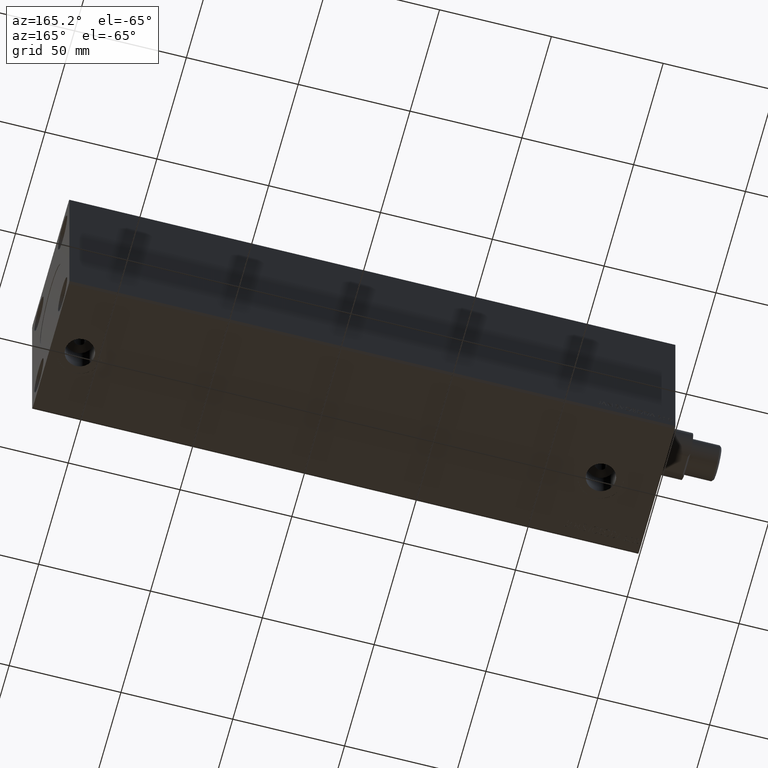
[diagram: clean part render]
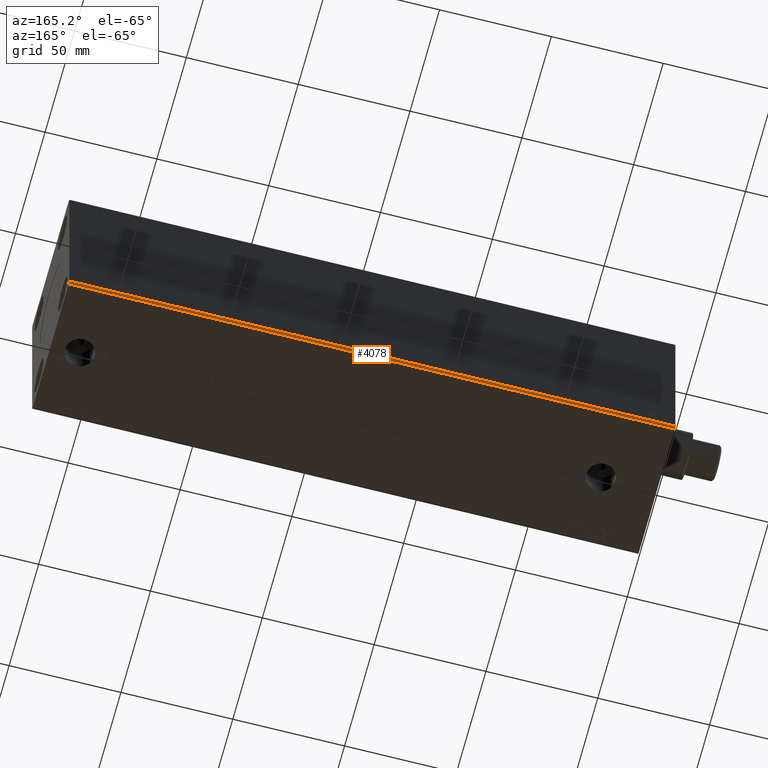
[diagram: same view with one face highlighted and labeled with its STEP entity id]
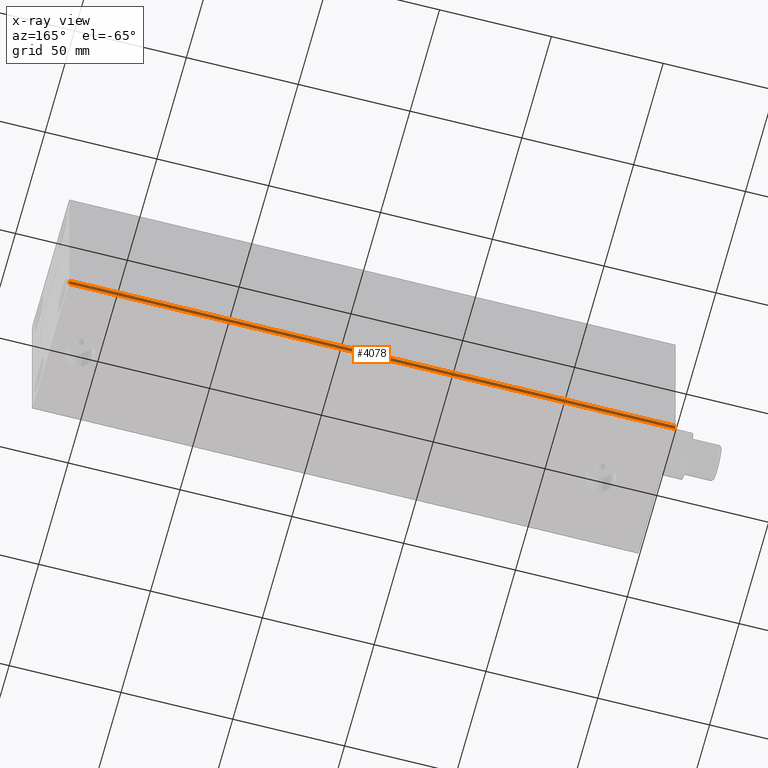
[diagram: x-ray of the same camera — body ghosted, the highlighted face saturated]
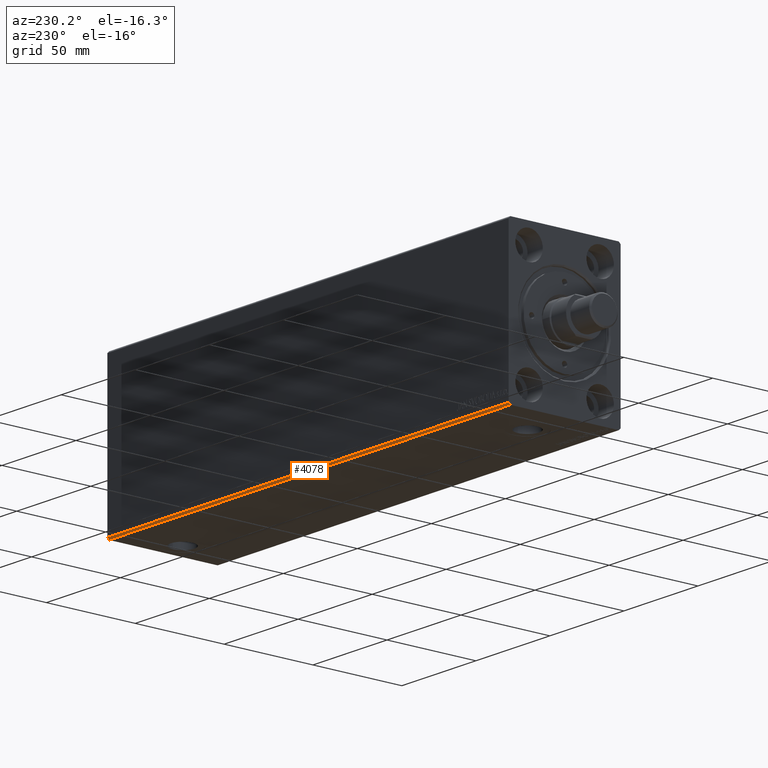
[diagram: same view with one face highlighted and labeled with its STEP entity id]
A machine part, auxiliary view. The second image highlights one B-rep face of the part: STEP entity #4078.
The next image is the same camera in x-ray: the body ghosted, the highlighted face saturated — about 0% of this face is hidden behind the body in this view.
A second angle (auxiliary view) of the same face is appended — the face is thin or edge-on in the first view.
In plain terms, the highlighted planar face has unit normal (0, -0.7071, 0.7071).
Its self-contained STEP definition (entity closure, byte-faithful):
#2047 = CARTESIAN_POINT ( 'NONE',  ( 271.0000000000000000, 30.50000000000001776, -42.50000000000000711 ) ) ;
#4078 = ADVANCED_FACE ( 'NONE', ( #10386 ), #34027, .F. ) ;
#4588 = VECTOR ( 'NONE', #19354, 999.9999999999998863 ) ;
#7129 = VERTEX_POINT ( 'NONE', #42872 ) ;
#7943 = DIRECTION ( 'NONE',  ( -1.000000000000000000, -0.000000000000000000, -0.000000000000000000 ) ) ;
#9083 = VERTEX_POINT ( 'NONE', #20391 ) ;
#10386 = FACE_OUTER_BOUND ( 'NONE', #36626, .T. ) ;
#12931 = CARTESIAN_POINT ( 'NONE',  ( 0.000000000000000000, 30.50000000000001776, -42.50000000000000711 ) ) ;
#13836 = ORIENTED_EDGE ( 'NONE', *, *, #34238, .F. ) ;
#14953 = ORIENTED_EDGE ( 'NONE', *, *, #29551, .T. ) ;
#15919 = VECTOR ( 'NONE', #29049, 999.9999999999998863 ) ;
#16235 = LINE ( 'NONE', #2047, #15919 ) ;
#18584 = AXIS2_PLACEMENT_3D ( 'NONE', #34898, #34241, #27494 ) ;
#18774 = ORIENTED_EDGE ( 'NONE', *, *, #22754, .T. ) ;
#19354 = DIRECTION ( 'NONE',  ( 0.000000000000000000, 0.7071067811865462405, 0.7071067811865489050 ) ) ;
#20019 = LINE ( 'NONE', #40267, #4588 ) ;
#20391 = CARTESIAN_POINT ( 'NONE',  ( 271.0000000000000000, 30.50000000000001776, -42.50000000000000711 ) ) ;
#22274 = ORIENTED_EDGE ( 'NONE', *, *, #23176, .F. ) ;
#22754 = EDGE_CURVE ( 'NONE', #9083, #31289, #31118, .T. ) ;
#23176 = EDGE_CURVE ( 'NONE', #9083, #7129, #16235, .T. ) ;
#23725 = CARTESIAN_POINT ( 'NONE',  ( 0.000000000000000000, 31.50000000000001421, -41.50000000000000711 ) ) ;
#27494 = DIRECTION ( 'NONE',  ( 0.000000000000000000, -0.7071067811865462405, -0.7071067811865489050 ) ) ;
#29049 = DIRECTION ( 'NONE',  ( 0.000000000000000000, 0.7071067811865462405, 0.7071067811865489050 ) ) ;
#29551 = EDGE_CURVE ( 'NONE', #31289, #39693, #20019, .T. ) ;
#30934 = LINE ( 'NONE', #34101, #43428 ) ;
#31118 = LINE ( 'NONE', #38761, #39653 ) ;
#31289 = VERTEX_POINT ( 'NONE', #12931 ) ;
#34027 = PLANE ( 'NONE',  #18584 ) ;
#34101 = CARTESIAN_POINT ( 'NONE',  ( 271.0000000000000000, 31.50000000000001421, -41.50000000000000711 ) ) ;
#34238 = EDGE_CURVE ( 'NONE', #7129, #39693, #30934, .T. ) ;
#34241 = DIRECTION ( 'NONE',  ( 0.000000000000000000, -0.7071067811865489050, 0.7071067811865462405 ) ) ;
#34898 = CARTESIAN_POINT ( 'NONE',  ( 271.0000000000000000, 30.50000000000001776, -42.50000000000000711 ) ) ;
#36626 = EDGE_LOOP ( 'NONE', ( #14953, #13836, #22274, #18774 ) ) ;
#38761 = CARTESIAN_POINT ( 'NONE',  ( 271.0000000000000000, 30.50000000000001776, -42.50000000000000711 ) ) ;
#39653 = VECTOR ( 'NONE', #7943, 1000.000000000000000 ) ;
#39693 = VERTEX_POINT ( 'NONE', #23725 ) ;
#40267 = CARTESIAN_POINT ( 'NONE',  ( 0.000000000000000000, 30.50000000000001776, -42.50000000000000711 ) ) ;
#42872 = CARTESIAN_POINT ( 'NONE',  ( 271.0000000000000000, 31.50000000000001421, -41.50000000000000711 ) ) ;
#43428 = VECTOR ( 'NONE', #43992, 1000.000000000000000 ) ;
#43992 = DIRECTION ( 'NONE',  ( -1.000000000000000000, -0.000000000000000000, -0.000000000000000000 ) ) ;